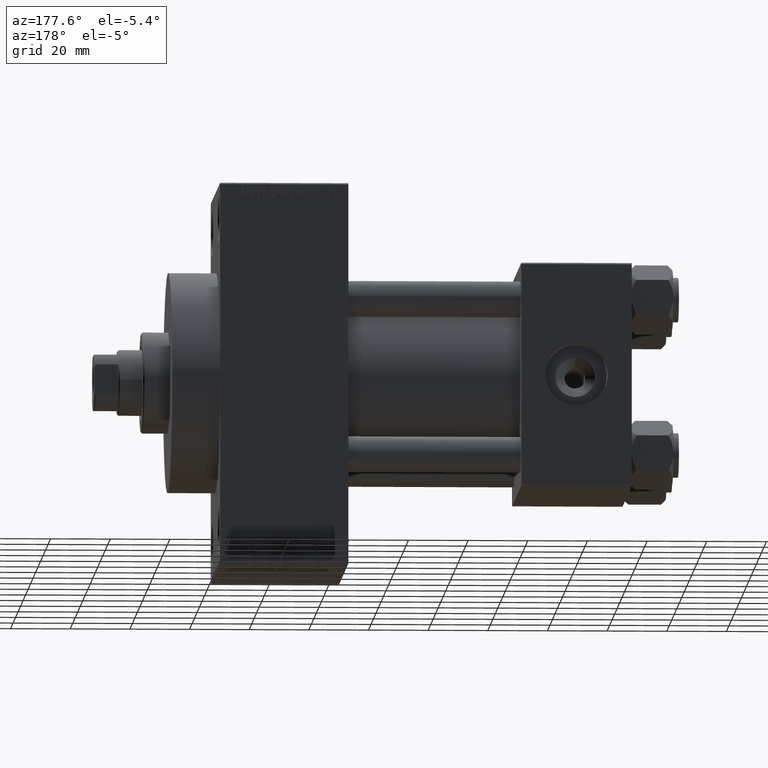
[diagram: clean part render]
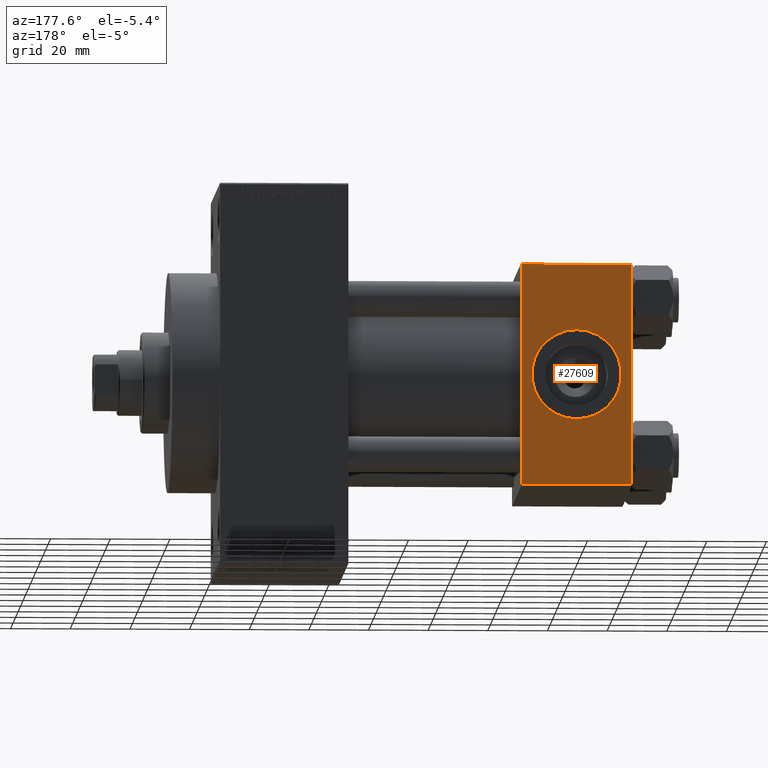
[diagram: same view with one face highlighted and labeled with its STEP entity id]
A machine part, auxiliary view. The second image highlights one B-rep face of the part: STEP entity #27609.
In plain terms, the highlighted planar face has unit normal (0, 1, 0).
Its self-contained STEP definition (entity closure, byte-faithful):
#12 = CARTESIAN_POINT ( 'NONE',  ( 18.50000000000000000, 37.49999999999999289, 0.000000000000000000 ) ) ;
#1819 = EDGE_CURVE ( 'NONE', #4258, #34236, #21042, .T. ) ;
#3530 = EDGE_CURVE ( 'NONE', #16197, #7275, #17926, .T. ) ;
#4258 = VERTEX_POINT ( 'NONE', #20860 ) ;
#6081 = CARTESIAN_POINT ( 'NONE',  ( 18.50000000000000355, 37.49999999999999289, -15.00000000000000178 ) ) ;
#6195 = CARTESIAN_POINT ( 'NONE',  ( 0.000000000000000000, 37.49999999999999289, 37.50000000000000000 ) ) ;
#7202 = DIRECTION ( 'NONE',  ( -1.000000000000000000, 0.000000000000000000, 0.000000000000000000 ) ) ;
#7275 = VERTEX_POINT ( 'NONE', #44567 ) ;
#8579 = DIRECTION ( 'NONE',  ( 0.000000000000000000, -0.000000000000000000, 1.000000000000000000 ) ) ;
#8796 = CARTESIAN_POINT ( 'NONE',  ( 37.00000000000000000, 37.49999999999999289, 37.00000000000000000 ) ) ;
#9320 = CARTESIAN_POINT ( 'NONE',  ( 18.50000000000000000, 37.49999999999999289, 0.000000000000000000 ) ) ;
#9597 = AXIS2_PLACEMENT_3D ( 'NONE', #9320, #11757, #20520 ) ;
#11156 = AXIS2_PLACEMENT_3D ( 'NONE', #12, #14329, #43451 ) ;
#11757 = DIRECTION ( 'NONE',  ( 0.000000000000000000, 1.000000000000000000, 0.000000000000000000 ) ) ;
#13402 = CIRCLE ( 'NONE', #9597, 15.00000000000000178 ) ;
#14215 = ORIENTED_EDGE ( 'NONE', *, *, #1819, .F. ) ;
#14329 = DIRECTION ( 'NONE',  ( 0.000000000000000000, 1.000000000000000000, 0.000000000000000000 ) ) ;
#14679 = VECTOR ( 'NONE', #27908, 1000.000000000000000 ) ;
#15494 = AXIS2_PLACEMENT_3D ( 'NONE', #34565, #30295, #8579 ) ;
#16195 = FACE_OUTER_BOUND ( 'NONE', #39061, .T. ) ;
#16197 = VERTEX_POINT ( 'NONE', #18274 ) ;
#16532 = VECTOR ( 'NONE', #23804, 1000.000000000000000 ) ;
#17926 = LINE ( 'NONE', #39899, #34849 ) ;
#18274 = CARTESIAN_POINT ( 'NONE',  ( 37.00000000000000000, 37.49999999999999289, -36.99999999999998579 ) ) ;
#18740 = VECTOR ( 'NONE', #38573, 1000.000000000000000 ) ;
#19052 = EDGE_LOOP ( 'NONE', ( #14215, #47152 ) ) ;
#20010 = FACE_BOUND ( 'NONE', #19052, .T. ) ;
#20520 = DIRECTION ( 'NONE',  ( 0.000000000000000000, 0.000000000000000000, 1.000000000000000000 ) ) ;
#20860 = CARTESIAN_POINT ( 'NONE',  ( 18.50000000000000000, 37.49999999999999289, 15.00000000000000178 ) ) ;
#21042 = CIRCLE ( 'NONE', #11156, 15.00000000000000178 ) ;
#22097 = VERTEX_POINT ( 'NONE', #28480 ) ;
#22960 = ORIENTED_EDGE ( 'NONE', *, *, #23406, .F. ) ;
#23406 = EDGE_CURVE ( 'NONE', #22097, #7275, #35534, .T. ) ;
#23804 = DIRECTION ( 'NONE',  ( 1.000000000000000000, 0.000000000000000000, 0.000000000000000000 ) ) ;
#23990 = CARTESIAN_POINT ( 'NONE',  ( 37.00000000000000000, 37.49999999999999289, 37.50000000000000000 ) ) ;
#26500 = ORIENTED_EDGE ( 'NONE', *, *, #45018, .T. ) ;
#27609 = ADVANCED_FACE ( 'NONE', ( #20010, #16195 ), #45315, .T. ) ;
#27908 = DIRECTION ( 'NONE',  ( 0.000000000000000000, 0.000000000000000000, -1.000000000000000000 ) ) ;
#28317 = VERTEX_POINT ( 'NONE', #29596 ) ;
#28480 = CARTESIAN_POINT ( 'NONE',  ( 0.000000000000000000, 37.49999999999999289, 37.00000000000000000 ) ) ;
#29596 = CARTESIAN_POINT ( 'NONE',  ( 37.00000000000000000, 37.49999999999999289, 37.00000000000000000 ) ) ;
#30295 = DIRECTION ( 'NONE',  ( -0.000000000000000000, 1.000000000000000000, 0.000000000000000000 ) ) ;
#33489 = EDGE_CURVE ( 'NONE', #34236, #4258, #13402, .T. ) ;
#34236 = VERTEX_POINT ( 'NONE', #6081 ) ;
#34565 = CARTESIAN_POINT ( 'NONE',  ( 37.00000000000000000, 37.49999999999999289, 37.50000000000000000 ) ) ;
#34849 = VECTOR ( 'NONE', #7202, 1000.000000000000000 ) ;
#35534 = LINE ( 'NONE', #6195, #14679 ) ;
#38279 = EDGE_CURVE ( 'NONE', #28317, #16197, #42150, .T. ) ;
#38573 = DIRECTION ( 'NONE',  ( 0.000000000000000000, 0.000000000000000000, -1.000000000000000000 ) ) ;
#39061 = EDGE_LOOP ( 'NONE', ( #42125, #40087, #22960, #26500 ) ) ;
#39899 = CARTESIAN_POINT ( 'NONE',  ( 37.00000000000000000, 37.49999999999999289, -36.99999999999998579 ) ) ;
#40087 = ORIENTED_EDGE ( 'NONE', *, *, #3530, .T. ) ;
#41262 = LINE ( 'NONE', #8796, #16532 ) ;
#42125 = ORIENTED_EDGE ( 'NONE', *, *, #38279, .T. ) ;
#42150 = LINE ( 'NONE', #23990, #18740 ) ;
#43451 = DIRECTION ( 'NONE',  ( 0.000000000000000000, 0.000000000000000000, 1.000000000000000000 ) ) ;
#44567 = CARTESIAN_POINT ( 'NONE',  ( 0.000000000000000000, 37.49999999999999289, -36.99999999999998579 ) ) ;
#45018 = EDGE_CURVE ( 'NONE', #22097, #28317, #41262, .T. ) ;
#45315 = PLANE ( 'NONE',  #15494 ) ;
#47152 = ORIENTED_EDGE ( 'NONE', *, *, #33489, .F. ) ;